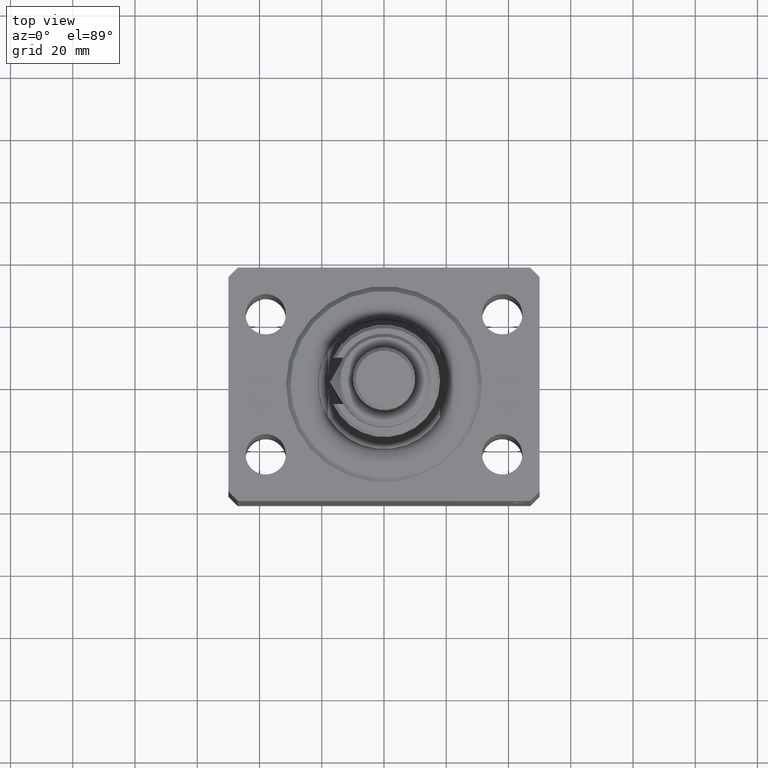
[diagram: clean part render]
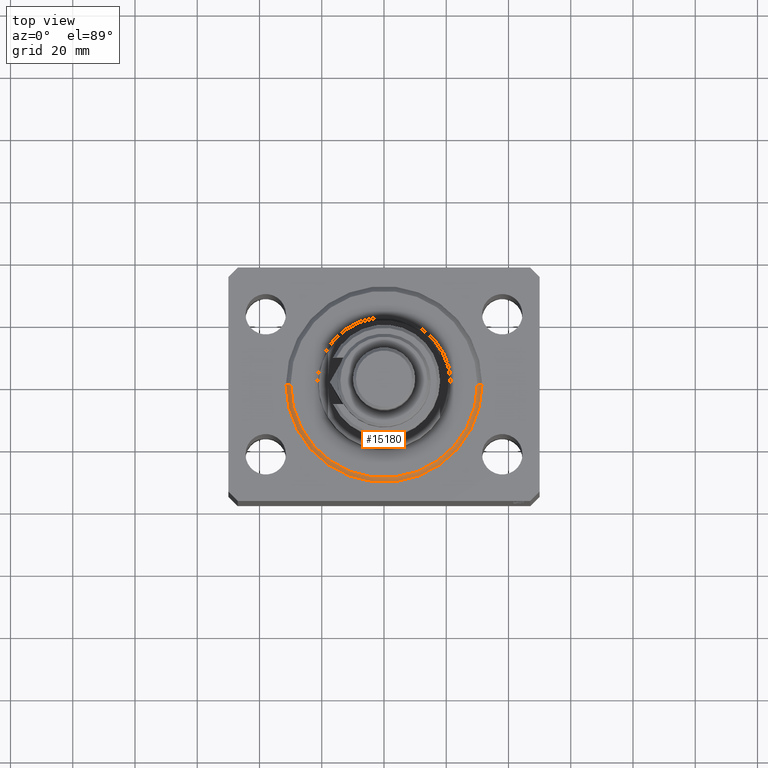
[diagram: same view with one face highlighted and labeled with its STEP entity id]
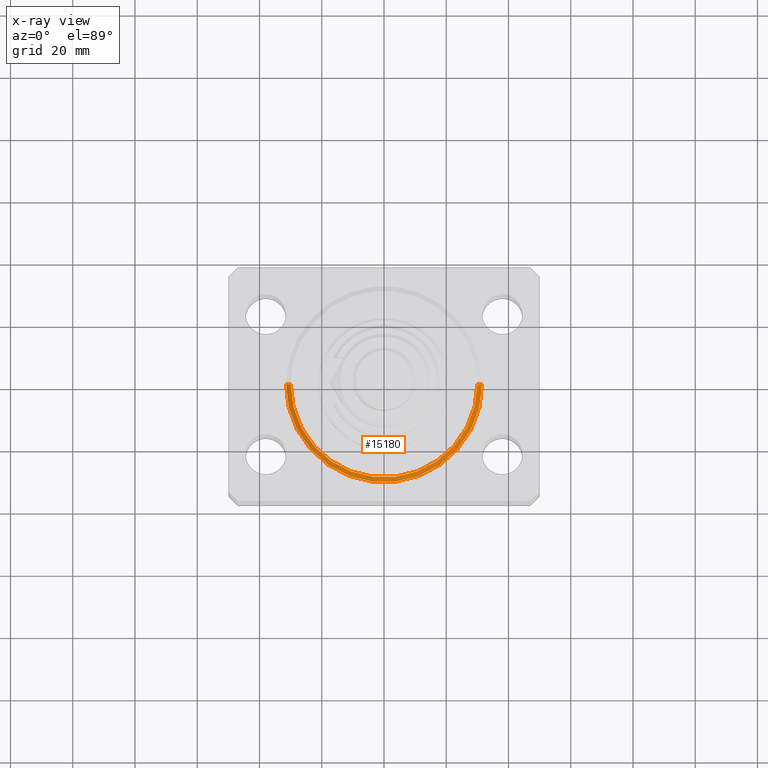
[diagram: x-ray of the same camera — body ghosted, the highlighted face saturated]
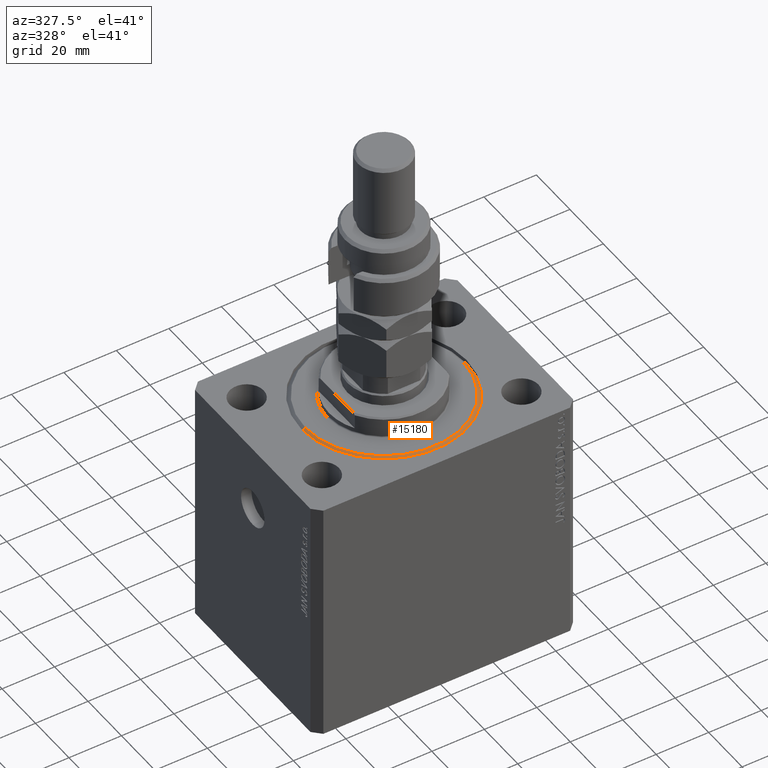
[diagram: same view with one face highlighted and labeled with its STEP entity id]
A machine part, top view. The second image highlights one B-rep face of the part: STEP entity #15180.
The next image is the same camera in x-ray: the body ghosted, the highlighted face saturated — about 0% of this face is hidden behind the body in this view.
A second angle (auxiliary view) of the same face is appended — the face is thin or edge-on in the first view.
In plain terms, the highlighted conical surface has half-angle 45 deg.
Its self-contained STEP definition (entity closure, byte-faithful):
#627 = ORIENTED_EDGE ( 'NONE', *, *, #27740, .F. ) ;
#678 = CARTESIAN_POINT ( 'NONE',  ( -31.50000000000000000, 3.857637417314162689E-15, 1.500000000000001332 ) ) ;
#1110 = VERTEX_POINT ( 'NONE', #14910 ) ;
#3482 = VECTOR ( 'NONE', #22755, 1000.000000000000000 ) ;
#3783 = VECTOR ( 'NONE', #23894, 1000.000000000000000 ) ;
#5454 = DIRECTION ( 'NONE',  ( -0.000000000000000000, -0.000000000000000000, 1.000000000000000000 ) ) ;
#9848 = FACE_OUTER_BOUND ( 'NONE', #36378, .T. ) ;
#10628 = EDGE_CURVE ( 'NONE', #38024, #29053, #12862, .T. ) ;
#12862 = LINE ( 'NONE', #27494, #3783 ) ;
#13233 = AXIS2_PLACEMENT_3D ( 'NONE', #21192, #20260, #39160 ) ;
#14910 = CARTESIAN_POINT ( 'NONE',  ( -29.99999999999999289, 3.765788907378110539E-15, 0.000000000000000000 ) ) ;
#15180 = ADVANCED_FACE ( 'NONE', ( #9848 ), #43067, .T. ) ;
#15395 = DIRECTION ( 'NONE',  ( -0.000000000000000000, -0.000000000000000000, 1.000000000000000000 ) ) ;
#15823 = ORIENTED_EDGE ( 'NONE', *, *, #10628, .T. ) ;
#16102 = CARTESIAN_POINT ( 'NONE',  ( 0.000000000000000000, 0.000000000000000000, 1.500000000000001332 ) ) ;
#16111 = CIRCLE ( 'NONE', #26067, 31.50000000000000000 ) ;
#19161 = LINE ( 'NONE', #678, #3482 ) ;
#20260 = DIRECTION ( 'NONE',  ( -0.000000000000000000, -0.000000000000000000, -1.000000000000000000 ) ) ;
#21192 = CARTESIAN_POINT ( 'NONE',  ( 0.000000000000000000, 0.000000000000000000, 0.000000000000000000 ) ) ;
#22755 = DIRECTION ( 'NONE',  ( -0.7071067811865491270, 8.659560562354952580E-17, 0.7071067811865459074 ) ) ;
#22822 = DIRECTION ( 'NONE',  ( 1.000000000000000000, 0.000000000000000000, 0.000000000000000000 ) ) ;
#23070 = VERTEX_POINT ( 'NONE', #32270 ) ;
#23894 = DIRECTION ( 'NONE',  ( 0.7071067811865491270, 0.000000000000000000, 0.7071067811865459074 ) ) ;
#23935 = DIRECTION ( 'NONE',  ( 1.000000000000000000, 0.000000000000000000, 0.000000000000000000 ) ) ;
#25335 = ORIENTED_EDGE ( 'NONE', *, *, #37667, .F. ) ;
#25805 = CARTESIAN_POINT ( 'NONE',  ( 31.50000000000000000, 3.857637417314162689E-15, 1.500000000000001332 ) ) ;
#26067 = AXIS2_PLACEMENT_3D ( 'NONE', #16102, #15395, #22822 ) ;
#27494 = CARTESIAN_POINT ( 'NONE',  ( 31.50000000000000000, 0.000000000000000000, 1.500000000000001332 ) ) ;
#27740 = EDGE_CURVE ( 'NONE', #23070, #29053, #16111, .T. ) ;
#29053 = VERTEX_POINT ( 'NONE', #25805 ) ;
#31694 = CARTESIAN_POINT ( 'NONE',  ( 29.99999999999999289, 0.000000000000000000, 0.000000000000000000 ) ) ;
#32270 = CARTESIAN_POINT ( 'NONE',  ( -31.50000000000000000, 0.000000000000000000, 1.500000000000001332 ) ) ;
#32395 = CIRCLE ( 'NONE', #13233, 29.99999999999999289 ) ;
#32510 = ORIENTED_EDGE ( 'NONE', *, *, #44415, .F. ) ;
#33864 = AXIS2_PLACEMENT_3D ( 'NONE', #42603, #5454, #23935 ) ;
#36378 = EDGE_LOOP ( 'NONE', ( #32510, #25335, #15823, #627 ) ) ;
#37667 = EDGE_CURVE ( 'NONE', #38024, #1110, #32395, .T. ) ;
#38024 = VERTEX_POINT ( 'NONE', #31694 ) ;
#39160 = DIRECTION ( 'NONE',  ( 1.000000000000000000, 0.000000000000000000, 0.000000000000000000 ) ) ;
#42603 = CARTESIAN_POINT ( 'NONE',  ( 0.000000000000000000, 0.000000000000000000, 1.500000000000001332 ) ) ;
#43067 = CONICAL_SURFACE ( 'NONE', #33864, 31.50000000000000000, 0.7853981633974506105 ) ;
#44415 = EDGE_CURVE ( 'NONE', #1110, #23070, #19161, .T. ) ;